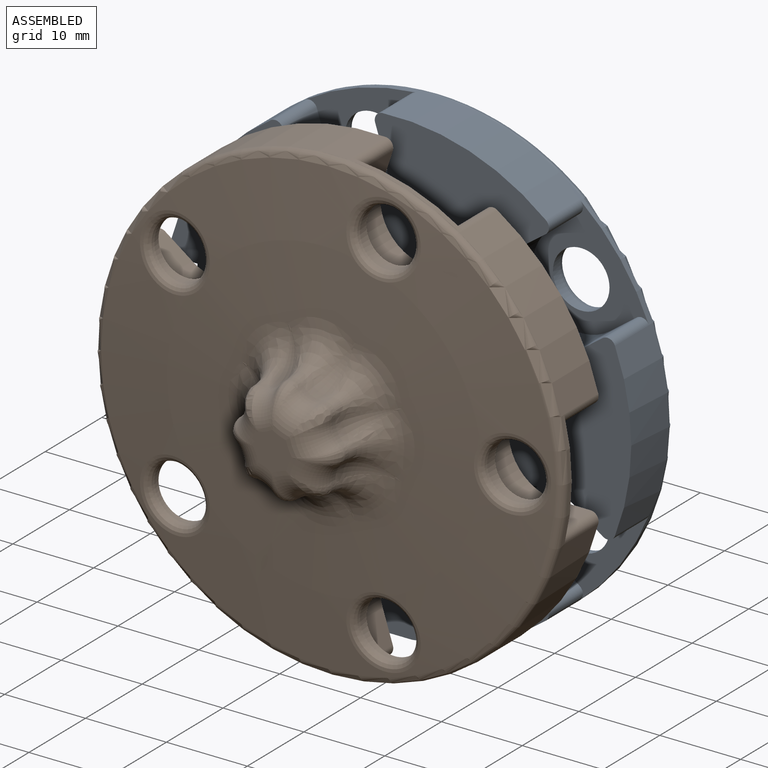
[diagram: assembled view]
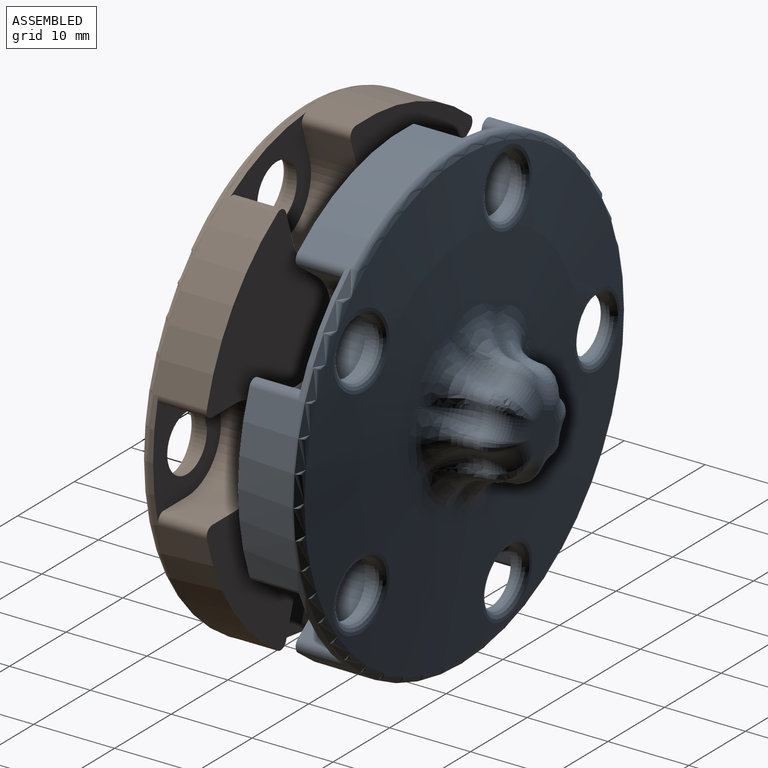
[diagram: assembled view, second angle]
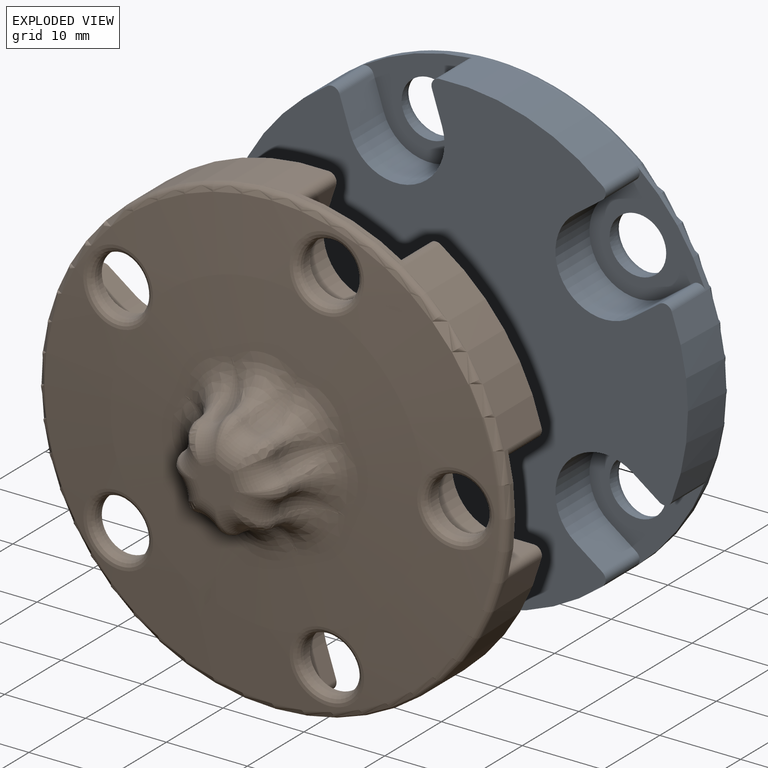
[diagram: exploded view]
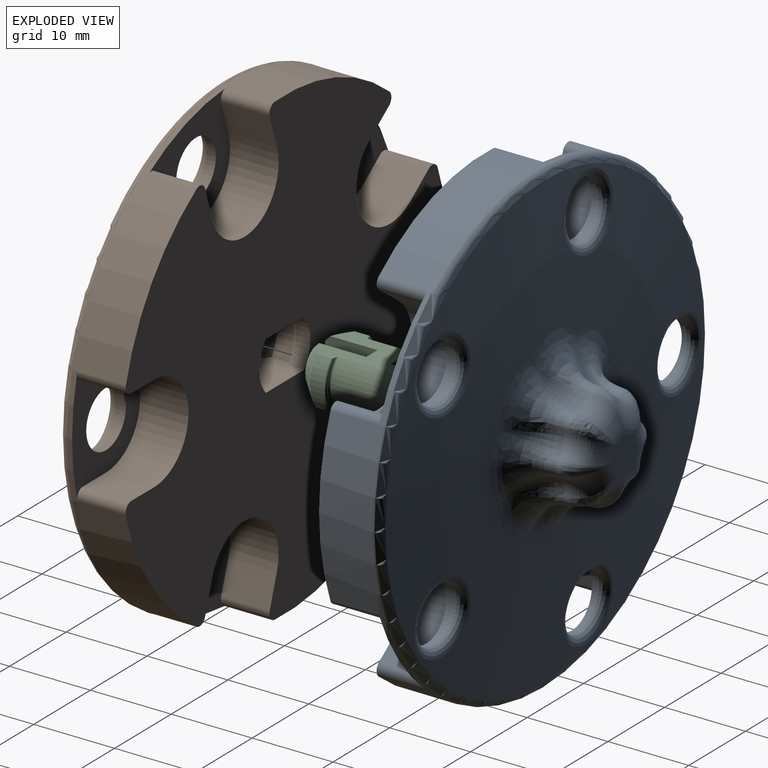
[diagram: exploded view, second angle]
ASSEMBLY  parts=3 mates=2
PART A: 103 faces, bbox 63x17.7x63 mm
  f0: plane 58x57.11mm, normal (0,1,0), area 1958.5mm2, adj f1,f4,f5,f11,f12,f19,f20,f21
  f1: cylinder r=29mm len=58mm, axis (0,-1,0), area 762.4mm2, adj f0,f13,f22,f26,f30,f34,f38,f39
  f2: sphere r=281.08mm, area 1798.4mm2, adj f13,f49,f50,f51,f52,f53,f87,f90
  f3: cylinder r=5mm len=6mm, axis (0,-1,0), area 12.6mm2, adj f6,f7,f11,f12
  f4: cylinder r=4.5mm len=6mm, axis (0,-1,0), area 11.8mm2, adj f0,f8,f11,f12
  f5: cylinder r=4.5mm len=6mm, axis (0,-1,0), area 11.8mm2, adj f0,f7,f11,f12
  f6: cone r=2.71mm half-angle=45deg, axis (0,1,0), area 46.9mm2, adj f3,f9,f10,f11,f12
  f7: torus R=4.25mm, axis (0,-1,0), area 6.1mm2, adj f3,f5,f11,f12
  f8: torus R=4.25mm, axis (0,-1,0), area 6.1mm2, adj f4,f9,f11,f12
  f9: cylinder r=5mm len=6mm, axis (0,-1,0), area 12.6mm2, adj f6,f8,f11,f12
  f10: plane 5.41x5.41mm, normal (0,1,0), area 23mm2, adj f6
  f11: plane 8.2x6.65mm, normal (1,0,0), area 43.2mm2, adj f0,f3,f4,f5,f6,f7,f8,f9
  f12: plane 8.2x6.65mm, normal (-1,0,0), area 43.2mm2, adj f0,f3,f4,f5,f6,f7,f8,f9
  f13: torus R=28mm, axis (0,1,0), area 265mm2, adj f1,f2
  f14: cylinder r=3.5mm len=7mm, axis (0,1,0), area 22.4mm2, adj f22,f53
  f15: cylinder r=3.5mm len=7mm, axis (0,1,0), area 21mm2, adj f26,f52
  f16: cylinder r=3.5mm len=7mm, axis (0,1,0), area 22.4mm2, adj f30,f51
  f17: cylinder r=3.5mm len=7mm, axis (0,1,0), area 22.4mm2, adj f34,f50
  f18: cylinder r=3.5mm len=7mm, axis (0,1,0), area 28mm2, adj f38,f49
  f19: plane 6x3.91mm, normal (-0.31,0,0.95), area 24.7mm2, adj f0,f21,f22,f39
  f20: plane 6x3.91mm, normal (0.31,0,-0.95), area 24.7mm2, adj f0,f21,f22,f40
  f21: cylinder r=6mm len=11.71mm, axis (0,1,0), area 113.1mm2, adj f0,f19,f20,f22
  f22: plane 14.46x13.07mm, normal (0,1,0), area 88.3mm2, adj f1,f14,f19,f20,f21,f39,f40
  f23: plane 6x3.33mm, normal (0.81,0,0.59), area 24.7mm2, adj f0,f25,f26,f41
  f24: plane 6x3.33mm, normal (-0.81,0,-0.59), area 24.7mm2, adj f0,f25,f26,f42
  f25: cylinder r=6mm len=10.85mm, axis (0,1,0), area 113.1mm2, adj f0,f23,f24,f26
  f26: plane 14.85x14.37mm, normal (0,1,0), area 88.3mm2, adj f1,f15,f23,f24,f25,f41,f42
  f27: plane 6x3.33mm, normal (0.81,0,-0.59), area 24.7mm2, adj f0,f29,f30,f43
  f28: plane 6x3.33mm, normal (-0.81,0,0.59), area 24.7mm2, adj f0,f29,f30,f44
  f29: cylinder r=6mm len=10.85mm, axis (0,1,0), area 113.1mm2, adj f0,f27,f28,f30
  f30: plane 14.85x14.37mm, normal (0,1,0), area 88.3mm2, adj f1,f16,f27,f28,f29,f43,f44
  f31: plane 6x3.91mm, normal (-0.31,0,-0.95), area 24.7mm2, adj f0,f33,f34,f45
  f32: plane 6x3.91mm, normal (0.31,0,0.95), area 24.7mm2, adj f0,f33,f34,f46
  f33: cylinder r=6mm len=11.71mm, axis (0,1,0), area 113.1mm2, adj f0,f31,f32,f34
  f34: plane 14.46x13.07mm, normal (0,1,0), area 88.3mm2, adj f1,f17,f31,f32,f33,f45,f46
  f35: plane 6x4.11mm, normal (1,0,0), area 24.7mm2, adj f0,f36,f38,f47
  f36: cylinder r=6mm len=12mm, axis (0,1,0), area 113.1mm2, adj f0,f35,f37,f38
  f37: plane 6x4.11mm, normal (-1,0,0), area 24.7mm2, adj f0,f36,f38,f48
  f38: plane 14.5x12mm, normal (0,1,0), area 88.3mm2, adj f1,f18,f35,f36,f37,f47,f48
  f39: cylinder r=1mm len=6mm, axis (0,-1,0), area 10.9mm2, adj f0,f1,f19,f22
  f40: cylinder r=1mm len=6mm, axis (0,-1,0), area 10.9mm2, adj f0,f1,f20,f22
  f41: cylinder r=1mm len=6mm, axis (0,-1,0), area 10.9mm2, adj f0,f1,f23,f26
  f42: cylinder r=1mm len=6mm, axis (0,-1,0), area 10.9mm2, adj f0,f1,f24,f26
  f43: cylinder r=1mm len=6mm, axis (0,-1,0), area 10.9mm2, adj f0,f1,f27,f30
  f44: cylinder r=1mm len=6mm, axis (0,-1,0), area 10.9mm2, adj f0,f1,f28,f30
  f45: cylinder r=1mm len=6mm, axis (0,-1,0), area 10.9mm2, adj f0,f1,f31,f34
  f46: cylinder r=1mm len=6mm, axis (0,-1,0), area 10.9mm2, adj f0,f1,f32,f34
  f47: cylinder r=1mm len=6mm, axis (0,-1,0), area 10.9mm2, adj f0,f1,f35,f38
  f48: cylinder r=1mm len=6mm, axis (0,-1,0), area 10.9mm2, adj f0,f1,f37,f38
  f49: bspline ~9.04x9.04mm, area 38.7mm2, adj f2,f18
  f50: bspline ~9.04x9.04mm, area 38.7mm2, adj f2,f17
  f51: bspline ~9.04x9.04mm, area 38.7mm2, adj f2,f16
  f52: bspline ~9.04x9.04mm, area 38.7mm2, adj f2,f15
  f53: bspline ~9.04x9.04mm, area 38.7mm2, adj f2,f14
  f54: cone r=2.36mm half-angle=3deg, axis (0,-1,0), area 1.9mm2, adj f55,f69,f82,f100
  f55: cone r=1.55mm half-angle=3deg, axis (0,1,0), area 1.5mm2, adj f54,f56,f80,f102
  f56: cone r=2.36mm half-angle=3deg, axis (0,-1,0), area 1.9mm2, adj f55,f57,f78,f101
  f57: cone r=1.55mm half-angle=3deg, axis (0,1,0), area 1.5mm2, adj f56,f58,f76,f99
  f58: cone r=2.36mm half-angle=3deg, axis (0,-1,0), area 1.9mm2, adj f57,f59,f74,f97
  f59: cone r=1.55mm half-angle=3deg, axis (0,1,0), area 1.5mm2, adj f58,f60,f72,f95
  f60: cone r=2.36mm half-angle=3deg, axis (0,-1,0), area 1.9mm2, adj f59,f61,f71,f93
  f61: cone r=1.55mm half-angle=3deg, axis (0,1,0), area 1.5mm2, adj f60,f62,f73,f91
  f62: cone r=2.36mm half-angle=3deg, axis (0,-1,0), area 1.9mm2, adj f61,f63,f75,f89
  f63: cone r=1.55mm half-angle=3deg, axis (0,1,0), area 1.5mm2, adj f62,f64,f77,f87
  f64: cone r=2.36mm half-angle=3deg, axis (0,-1,0), area 1.9mm2, adj f63,f65,f79,f88
  f65: cone r=1.55mm half-angle=3deg, axis (0,1,0), area 1.5mm2, adj f64,f66,f81,f90
  f66: cone r=2.36mm half-angle=3deg, axis (0,-1,0), area 1.9mm2, adj f65,f67,f83,f92
  f67: cone r=1.55mm half-angle=3deg, axis (0,1,0), area 1.5mm2, adj f66,f68,f85,f94
  f68: cone r=2.36mm half-angle=3deg, axis (0,-1,0), area 1.9mm2, adj f67,f69,f86,f96
  f69: cone r=1.55mm half-angle=3deg, axis (0,1,0), area 1.5mm2, adj f54,f68,f84,f98
  f70: plane 4.83x4.83mm, normal (0,-1,0), area 15.8mm2, adj f71,f74,f75,f78,f79,f82,f83,f86
  f71: torus R=6.21mm, axis (0,-1,0), area 14mm2, adj f60,f70,f72,f73
  f72: bspline ~4.27x3.32mm, area 4.6mm2, adj f59,f71,f74
  f73: bspline ~3.38x3.37mm, area 4.6mm2, adj f61,f71,f75
  f74: torus R=6.21mm, axis (0,-1,0), area 14mm2, adj f58,f70,f72,f76
  f75: torus R=6.21mm, axis (0,-1,0), area 14mm2, adj f62,f70,f73,f77
  f76: bspline ~3.38x3.37mm, area 4.6mm2, adj f57,f74,f78
  f77: bspline ~4.27x3.32mm, area 4.6mm2, adj f63,f75,f79
  f78: torus R=6.21mm, axis (0,-1,0), area 14mm2, adj f56,f70,f76,f80
  f79: torus R=6.21mm, axis (0,-1,0), area 14mm2, adj f64,f70,f77,f81
  f80: bspline ~4.27x3.32mm, area 4.6mm2, adj f55,f78,f82
  f81: bspline ~3.38x3.37mm, area 4.6mm2, adj f65,f79,f83
  f82: torus R=6.21mm, axis (0,-1,0), area 14mm2, adj f54,f70,f80,f84
  f83: torus R=6.21mm, axis (0,-1,0), area 14mm2, adj f66,f70,f81,f85
  f84: bspline ~3.38x3.37mm, area 4.6mm2, adj f69,f82,f86
  f85: bspline ~4.27x3.32mm, area 4.6mm2, adj f67,f83,f86
  f86: torus R=6.21mm, axis (0,-1,0), area 14mm2, adj f68,f70,f84,f85
  f87: bspline ~11.34x5.57mm, area 37.3mm2, adj f2,f63,f88,f89
  f88: bspline ~4.87x4.75mm, area 11.3mm2, adj f64,f87,f90
  f89: bspline ~4.87x4.75mm, area 8.4mm2, adj f62,f87,f91
  f90: bspline ~8.5x8.5mm, area 37.3mm2, adj f2,f65,f88,f92
  f91: bspline ~8.5x7.52mm, area 37.3mm2, adj f2,f61,f89,f93
  f92: bspline ~4.87x4.75mm, area 12.1mm2, adj f66,f90,f94
  f93: bspline ~4.87x4.75mm, area 8.4mm2, adj f60,f91,f95
  f94: bspline ~10.88x5.57mm, area 37.3mm2, adj f2,f67,f92,f96
  f95: bspline ~10.88x5.57mm, area 37.3mm2, adj f2,f59,f93,f97
  f96: bspline ~4.87x4.75mm, area 12.2mm2, adj f68,f94,f98
  f97: bspline ~4.87x4.75mm, area 8.2mm2, adj f58,f95,f99
  f98: bspline ~8.5x7.52mm, area 37.3mm2, adj f2,f69,f96,f100
  f99: bspline ~8.5x8.5mm, area 37.3mm2, adj f2,f57,f97,f101
  f100: bspline ~4.87x4.75mm, area 8.4mm2, adj f54,f98,f102
  f101: bspline ~4.87x4.75mm, area 8.5mm2, adj f56,f99,f102
  f102: bspline ~10.88x5.57mm, area 37.3mm2, adj f2,f55,f100,f101
PART B: same geometry as A
PART C: 38 faces, bbox 9.8x16.1x8.6 mm
  f0: torus R=4.25mm, axis (0,-1,0), area 2.6mm2, adj f1,f5,f19,f20
  f1: torus R=4.25mm, axis (0,-1,0), area 2.6mm2, adj f0,f2,f19,f20
  f2: cylinder r=4.5mm len=6mm, axis (0,-1,0), area 11.5mm2, adj f1,f3,f19,f20
  f3: cone r=2.5mm half-angle=45deg, axis (0,1,0), area 19.6mm2, adj f2,f11,f14,f18,f19,f20
  f4: plane 6x3mm, normal (0,-1,0), area 13.5mm2, adj f11,f12,f13,f15,f17,f18,f19,f20
  f5: cylinder r=4mm len=7.5mm, axis (0,-1,0), area 50.9mm2, adj f0,f19,f20,f21
  f6: cylinder r=4mm len=7.5mm, axis (0,-1,0), area 50.9mm2, adj f7,f19,f20,f26
  f7: torus R=4.25mm, axis (0,-1,0), area 2.6mm2, adj f6,f8,f19,f20
  f8: torus R=4.25mm, axis (0,-1,0), area 2.6mm2, adj f7,f9,f19,f20
  f9: cylinder r=4.5mm len=6mm, axis (0,-1,0), area 11.5mm2, adj f8,f10,f19,f20
  f10: cone r=2.5mm half-angle=45deg, axis (0,1,0), area 19.6mm2, adj f9,f12,f16,f17,f19,f20
  f11: plane 6.53x1.91mm, normal (-1,0,0), area 12mm2, adj f3,f4,f13,f14,f20
  f12: plane 6.53x1.91mm, normal (1,0,0), area 12mm2, adj f4,f10,f15,f16,f20
  f13: cylinder r=1.5mm len=6.5mm, axis (0,-1,0), area 16.4mm2, adj f4,f11,f14,f18
  f14: plane 4.58x1.5mm, normal (0,-1,0), area 4.2mm2, adj f3,f11,f13,f18
  f15: cylinder r=1.5mm len=6.5mm, axis (0,-1,0), area 16.4mm2, adj f4,f12,f16,f17
  f16: plane 4.58x1.5mm, normal (0,-1,0), area 4.2mm2, adj f10,f12,f15,f17
  f17: plane 6.53x1.91mm, normal (1,0,0), area 12mm2, adj f4,f10,f15,f16,f19
  f18: plane 6.53x1.91mm, normal (-1,0,0), area 12mm2, adj f3,f4,f13,f14,f19
  f19: plane 14.77x6.8mm, normal (0,0,1), area 58.3mm2, adj f0,f1,f2,f3,f4,f5,f6,f7
  f20: plane 14.77x6.8mm, normal (0,0,-1), area 58.3mm2, adj f0,f1,f2,f3,f4,f5,f6,f7
  f21: torus R=4.25mm, axis (0,1,0), area 2.6mm2, adj f5,f19,f20,f22
  f22: torus R=4.25mm, axis (0,1,0), area 2.6mm2, adj f19,f20,f21,f23
  f23: cylinder r=4.5mm len=6mm, axis (0,1,0), area 11.5mm2, adj f19,f20,f22,f24
  f24: cone r=2.5mm half-angle=45deg, axis (0,-1,0), area 19.6mm2, adj f19,f20,f23,f30,f33,f37
  f25: plane 6x3mm, normal (0,1,0), area 13.5mm2, adj f19,f20,f30,f31,f32,f34,f36,f37
  f26: torus R=4.25mm, axis (0,1,0), area 2.6mm2, adj f6,f19,f20,f27
  f27: torus R=4.25mm, axis (0,1,0), area 2.6mm2, adj f19,f20,f26,f28
  f28: cylinder r=4.5mm len=6mm, axis (0,1,0), area 11.5mm2, adj f19,f20,f27,f29
  f29: cone r=2.5mm half-angle=45deg, axis (0,-1,0), area 19.6mm2, adj f19,f20,f28,f31,f35,f36
  f30: plane 6.53x1.91mm, normal (-1,0,0), area 12mm2, adj f20,f24,f25,f32,f33
  f31: plane 6.53x1.91mm, normal (1,0,0), area 12mm2, adj f20,f25,f29,f34,f35
  f32: cylinder r=1.5mm len=6.5mm, axis (0,1,0), area 16.4mm2, adj f25,f30,f33,f37
  f33: plane 4.58x1.5mm, normal (0,1,0), area 4.2mm2, adj f24,f30,f32,f37
  f34: cylinder r=1.5mm len=6.5mm, axis (0,1,0), area 16.4mm2, adj f25,f31,f35,f36
  f35: plane 4.58x1.5mm, normal (0,1,0), area 4.2mm2, adj f29,f31,f34,f36
  f36: plane 6.53x1.91mm, normal (1,0,0), area 12mm2, adj f19,f25,f29,f34,f35
  f37: plane 6.53x1.91mm, normal (-1,0,0), area 12mm2, adj f19,f24,f25,f32,f33
PLACE A rot(axis=(0.71,0,-0.71),180deg) t=(80.17,0.12,80.17)mm
PLACE B rot(axis=(0,1,0),90deg) t=(-27.83,-0.88,80.17)mm
PLACE C t=(26.17,-0.38,-116.08)mm
MATE fastened A.f1 <-> C.f0  axis (0,-1,0) through (26.17,8.62,54)mm
MATE fastened B.f1 <-> C.f0  axis (0,1,0) through (26.17,-9.38,54)mm
